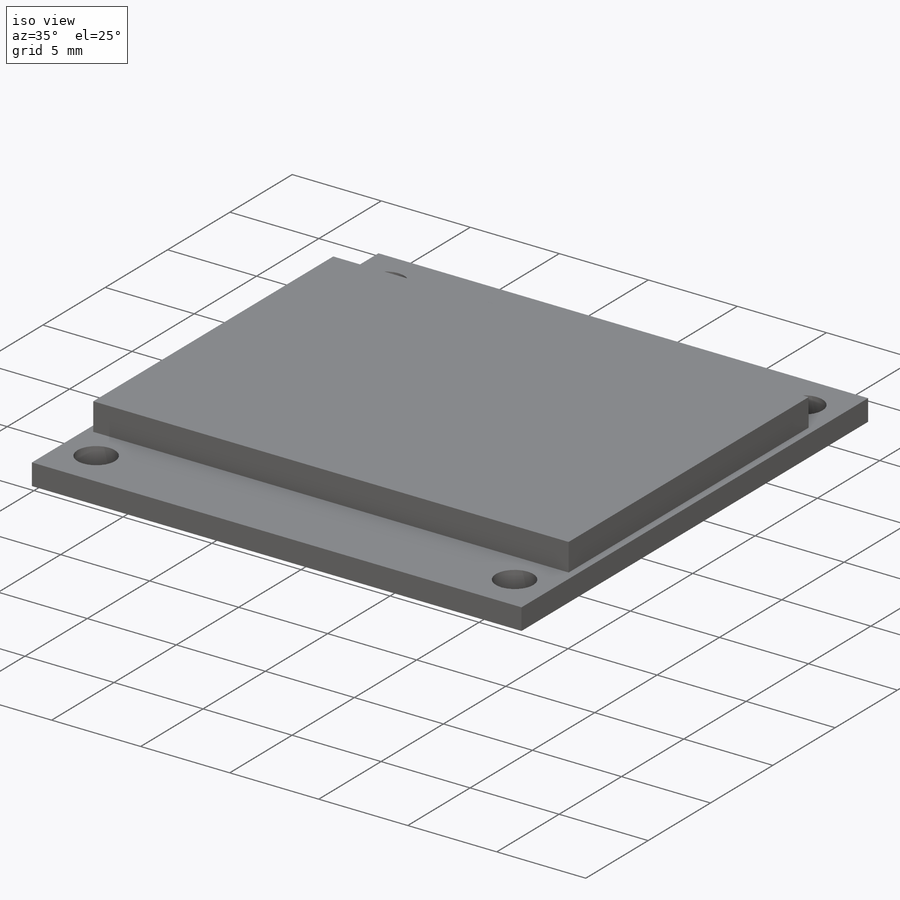
[diagram: iso view]
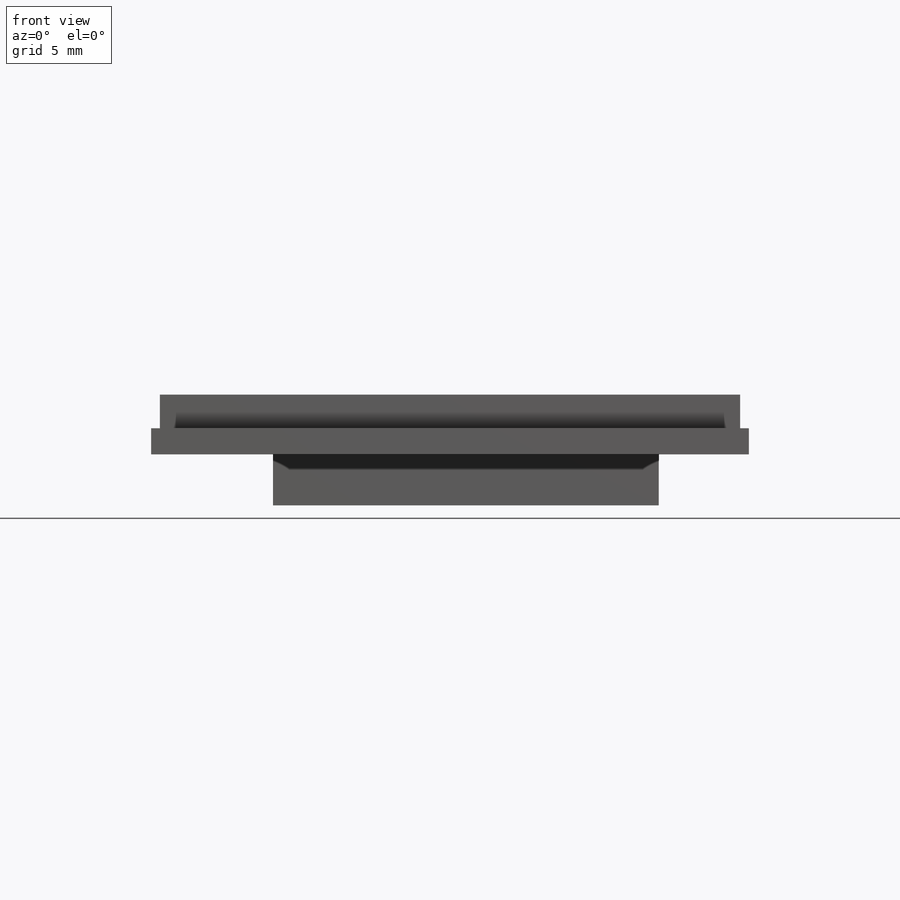
[diagram: front view]
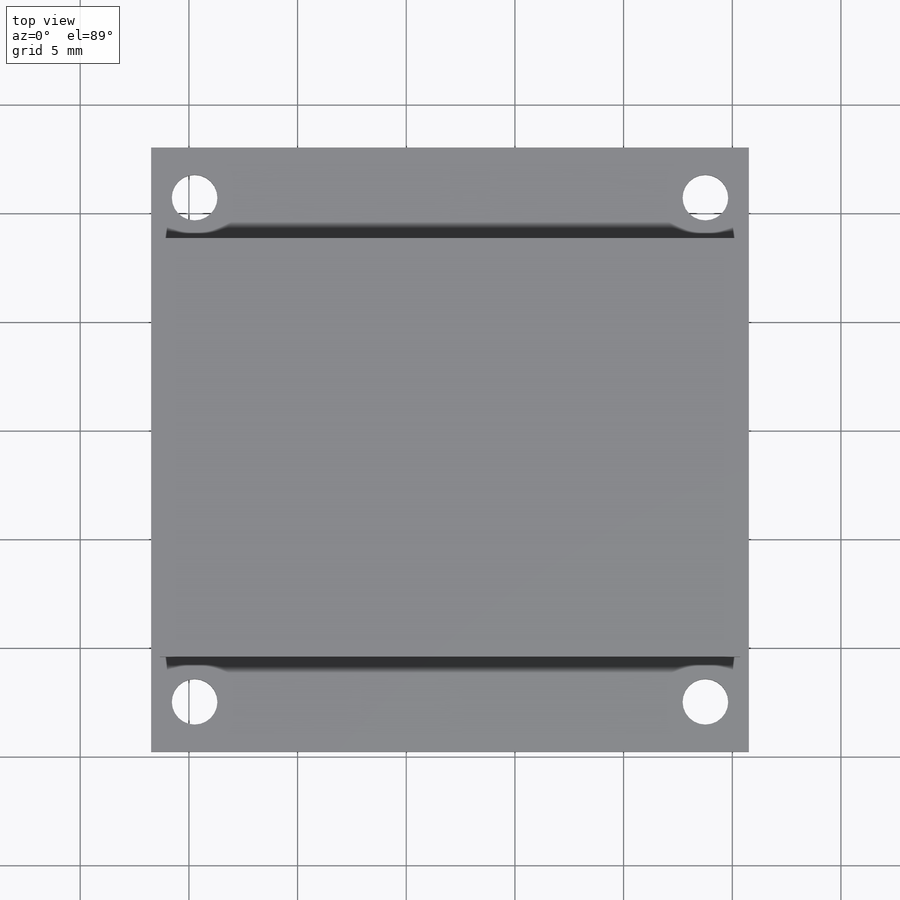
[diagram: top view]
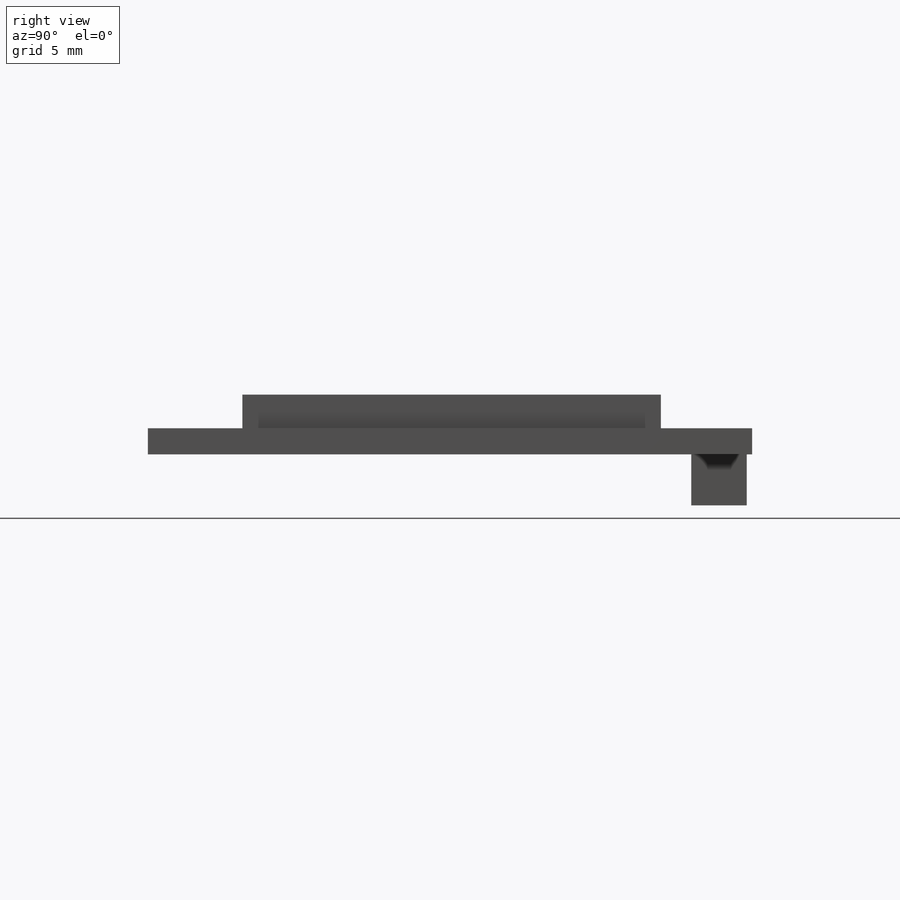
[diagram: right view]
SOLIDWORKS PART (.sldprt)
format: sldprt  version: not decoded by parser v0  size: 164,864 bytes
history: native  units: mm
features: sketch x3, extrude x3, material x1 (+12 scaffold rows collapsed)
feature tree (19):
  scaffold x12  (default folders/planes/origin — collapsed)
  material  "Material <not specified>"
  sketch  "Sketch1"  dims[c1.D3=2.1mm c1.D1=~46.724383mm c1.D2=~58.303904mm c2.D1=27.5mm c2.D2=27.8mm c2.D4=2.0mm c2.D5=2.0mm c2.D6=2.3mm c2.D7=2.3mm]
  extrude  "Boss-Extrude1"  Depth=1.2mm
  sketch  "Sketch2"  dims[c1.D1=~13.531147mm c1.D2=~25.410396mm c2.D1=26.7mm c2.D2=19.25mm c2.D3=4.2mm c2.D4=0.4mm c2.D5=0.4mm]
  extrude  "Boss-Extrude2"  Depth=1.55mm
  sketch  "Sketch3"  dims[c1.D1=~3.094648mm c1.D2=~16.958764mm c2.D1=17.75mm c2.D2=2.55mm c2.D3=0.25mm]
  extrude  "Boss-Extrude3"  Depth=2.35mm
decode coverage: 6 of 6 modeling features carry decoded parameters
note: ~ marks probable driven/reference dimensions
note: suppression state not decoded; provenance and decode notes live in map.json
